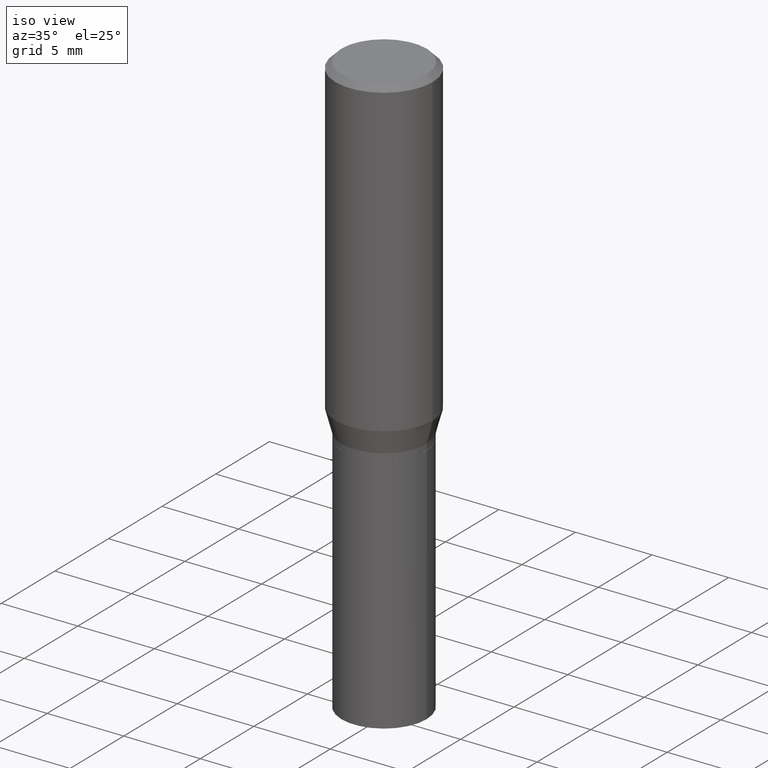
[diagram: clean part render]
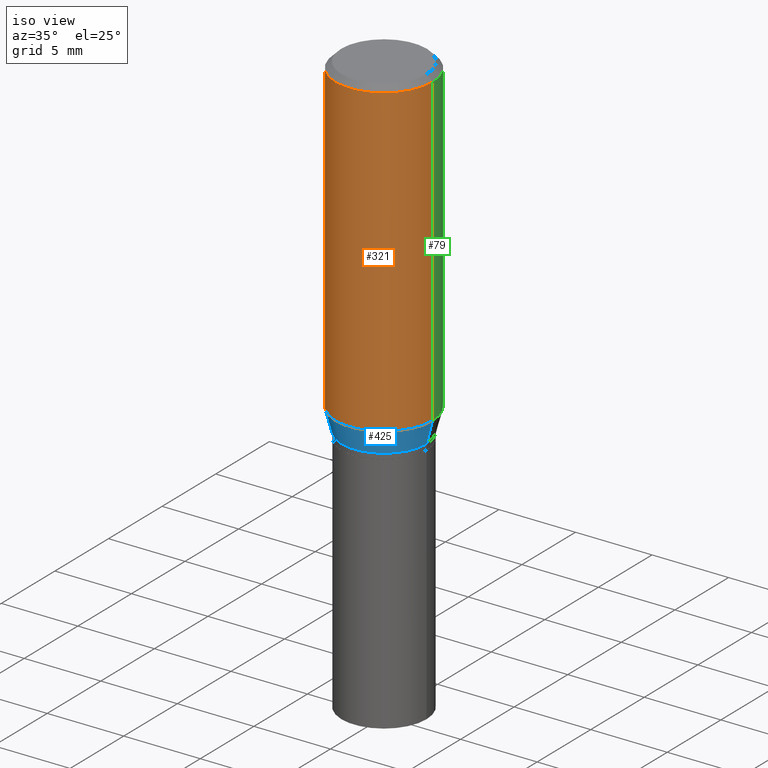
[diagram: same view with three faces highlighted in distinct colors, each labeled with its STEP entity id]
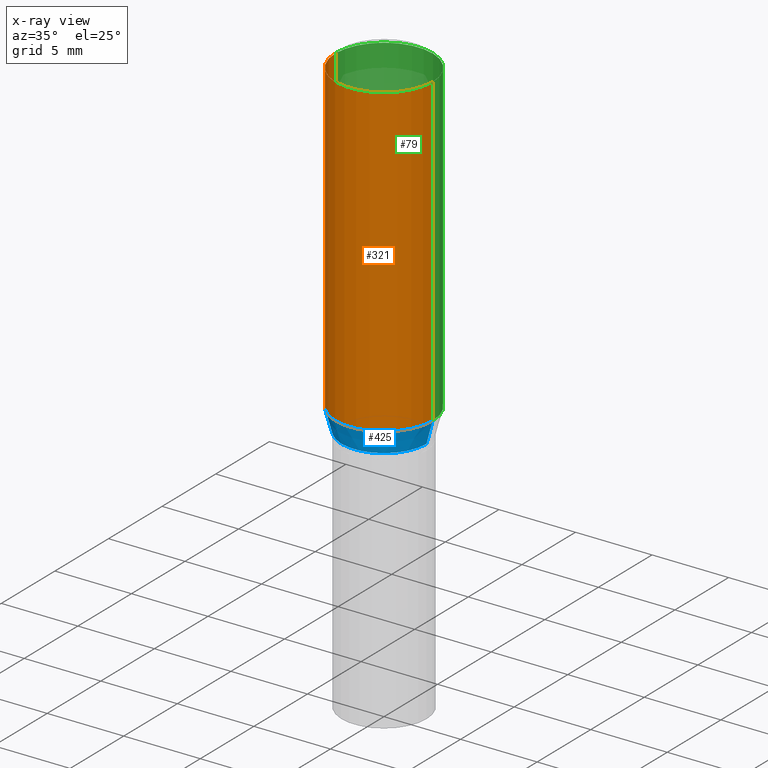
[diagram: x-ray of the same camera — body ghosted, the three highlighted faces saturated]
A machine part, iso view with three faces highlighted in distinct colors.
The next image is the same camera in x-ray (body ghosted, the three faces saturated) — at least one of them is partly hidden behind the body in this view.
Their STEP definitions:

[orange] entity #321 — the highlighted cylindrical surface (partial cylindrical patch) has radius 3.175 mm, axis along (-0, 0, 1).
#14 = DIRECTION ( 'NONE',  ( 1.000000000000000000, -6.982962677686266711E-15, 4.876176775795935793E-29 ) ) ;
#30 = EDGE_CURVE ( 'NONE', #151, #400, #253, .T. ) ;
#35 = EDGE_LOOP ( 'NONE', ( #453, #46, #416, #188 ) ) ;
#45 = CARTESIAN_POINT ( 'NONE',  ( 0.1250000000000000000, -9.252425547934304180E-16, -0.01499999999999999944 ) ) ;
#46 = ORIENTED_EDGE ( 'NONE', *, *, #30, .T. ) ;
#71 = VECTOR ( 'NONE', #360, 39.37007874015748143 ) ;
#78 = LINE ( 'NONE', #218, #71 ) ;
#80 = CARTESIAN_POINT ( 'NONE',  ( -0.1250000000000000000, -5.377076571918702821E-16, -0.01499999999999999944 ) ) ;
#100 = DIRECTION ( 'NONE',  ( -2.445468806185136597E-29, 3.491481338843145583E-15, 1.000000000000000000 ) ) ;
#137 = VECTOR ( 'NONE', #316, 39.37007874015748143 ) ;
#139 = LINE ( 'NONE', #167, #137 ) ;
#151 = VERTEX_POINT ( 'NONE', #398 ) ;
#167 = CARTESIAN_POINT ( 'NONE',  ( -0.1250000000000000000, 8.881784197001252323E-16, -6.148668862818632227E-30 ) ) ;
#188 = ORIENTED_EDGE ( 'NONE', *, *, #451, .F. ) ;
#203 = DIRECTION ( 'NONE',  ( 1.000000000000000000, -6.982962677686266711E-15, 0.000000000000000000 ) ) ;
#218 = CARTESIAN_POINT ( 'NONE',  ( 0.1250000000000000000, -8.728703347107833388E-16, 6.095220969744919741E-30 ) ) ;
#219 = CARTESIAN_POINT ( 'NONE',  ( 0.000000000000000000, 0.000000000000000000, 0.000000000000000000 ) ) ;
#222 = DIRECTION ( 'NONE',  ( -2.445468806185136597E-29, 3.491481338843145583E-15, 1.000000000000000000 ) ) ;
#253 = CIRCLE ( 'NONE', #284, 0.1250000000000000000 ) ;
#255 = AXIS2_PLACEMENT_3D ( 'NONE', #219, #332, #14 ) ;
#261 = CARTESIAN_POINT ( 'NONE',  ( 3.668203209277705088E-31, -5.237222008264718399E-17, -0.01499999999999999944 ) ) ;
#276 = EDGE_CURVE ( 'NONE', #151, #410, #139, .T. ) ;
#284 = AXIS2_PLACEMENT_3D ( 'NONE', #340, #100, #203 ) ;
#296 = FACE_OUTER_BOUND ( 'NONE', #35, .T. ) ;
#316 = DIRECTION ( 'NONE',  ( -2.445468806185136877E-29, 3.491481338843145188E-15, 1.000000000000000000 ) ) ;
#321 = ADVANCED_FACE ( 'NONE', ( #296 ), #443, .T. ) ;
#332 = DIRECTION ( 'NONE',  ( -2.445468806185136597E-29, 3.491481338843145583E-15, 1.000000000000000000 ) ) ;
#340 = CARTESIAN_POINT ( 'NONE',  ( 1.960727997524298183E-29, -2.799399933701343752E-15, -0.8017800074019261203 ) ) ;
#346 = AXIS2_PLACEMENT_3D ( 'NONE', #261, #222, #364 ) ;
#354 = VERTEX_POINT ( 'NONE', #45 ) ;
#360 = DIRECTION ( 'NONE',  ( -2.445468806185136877E-29, 3.491481338843145188E-15, 1.000000000000000000 ) ) ;
#364 = DIRECTION ( 'NONE',  ( 1.000000000000000000, -6.982962677686266711E-15, 0.000000000000000000 ) ) ;
#398 = CARTESIAN_POINT ( 'NONE',  ( -0.1250000000000000000, -1.911221514001218520E-15, -0.8017800074019261203 ) ) ;
#400 = VERTEX_POINT ( 'NONE', #445 ) ;
#407 = EDGE_CURVE ( 'NONE', #400, #354, #78, .T. ) ;
#410 = VERTEX_POINT ( 'NONE', #80 ) ;
#416 = ORIENTED_EDGE ( 'NONE', *, *, #407, .T. ) ;
#441 = CIRCLE ( 'NONE', #346, 0.1250000000000000000 ) ;
#443 = CYLINDRICAL_SURFACE ( 'NONE', #255, 0.1250000000000000000 ) ;
#445 = CARTESIAN_POINT ( 'NONE',  ( 0.1250000000000000000, -3.672270268412127091E-15, -0.8017800074019261203 ) ) ;
#451 = EDGE_CURVE ( 'NONE', #410, #354, #441, .T. ) ;
#453 = ORIENTED_EDGE ( 'NONE', *, *, #276, .F. ) ;

[blue] entity #425 — the highlighted conical surface has half-angle 15 deg.
#2 = CARTESIAN_POINT ( 'NONE',  ( -0.1094000000000000389, -2.225340198483555672E-15, -0.8600000000000000977 ) ) ;
#26 = EDGE_CURVE ( 'NONE', #320, #83, #365, .T. ) ;
#30 = EDGE_CURVE ( 'NONE', #151, #400, #253, .T. ) ;
#62 = CARTESIAN_POINT ( 'NONE',  ( 2.103103173319217765E-29, -3.002673951405105651E-15, -0.8600000000000000977 ) ) ;
#83 = VERTEX_POINT ( 'NONE', #379 ) ;
#100 = DIRECTION ( 'NONE',  ( -2.445468806185136597E-29, 3.491481338843145583E-15, 1.000000000000000000 ) ) ;
#116 = FACE_OUTER_BOUND ( 'NONE', #299, .T. ) ;
#117 = ORIENTED_EDGE ( 'NONE', *, *, #30, .F. ) ;
#118 = CARTESIAN_POINT ( 'NONE',  ( 2.103103173319217765E-29, -3.002673951405105651E-15, -0.8600000000000000977 ) ) ;
#120 = AXIS2_PLACEMENT_3D ( 'NONE', #62, #314, #424 ) ;
#129 = VECTOR ( 'NONE', #324, 39.37007874015748854 ) ;
#151 = VERTEX_POINT ( 'NONE', #398 ) ;
#170 = ORIENTED_EDGE ( 'NONE', *, *, #238, .F. ) ;
#179 = ORIENTED_EDGE ( 'NONE', *, *, #26, .T. ) ;
#184 = DIRECTION ( 'NONE',  ( 1.000000000000000000, -6.982962677686266711E-15, 0.000000000000000000 ) ) ;
#203 = DIRECTION ( 'NONE',  ( 1.000000000000000000, -6.982962677686266711E-15, 0.000000000000000000 ) ) ;
#204 = EDGE_CURVE ( 'NONE', #83, #400, #282, .T. ) ;
#209 = VECTOR ( 'NONE', #285, 39.37007874015748854 ) ;
#211 = AXIS2_PLACEMENT_3D ( 'NONE', #118, #442, #184 ) ;
#238 = EDGE_CURVE ( 'NONE', #320, #151, #323, .T. ) ;
#253 = CIRCLE ( 'NONE', #284, 0.1250000000000000000 ) ;
#256 = CARTESIAN_POINT ( 'NONE',  ( -0.1094000000000000389, -2.068280856242386899E-15, -0.8600000000000000977 ) ) ;
#260 = ORIENTED_EDGE ( 'NONE', *, *, #204, .T. ) ;
#280 = CONICAL_SURFACE ( 'NONE', #211, 0.1094000000000000389, 0.2617993877991507401 ) ;
#282 = LINE ( 'NONE', #389, #209 ) ;
#284 = AXIS2_PLACEMENT_3D ( 'NONE', #340, #100, #203 ) ;
#285 = DIRECTION ( 'NONE',  ( 0.2588190451025219607, 1.565188264969616840E-15, 0.9659258262890678681 ) ) ;
#299 = EDGE_LOOP ( 'NONE', ( #170, #179, #260, #117 ) ) ;
#314 = DIRECTION ( 'NONE',  ( -2.445468806185136597E-29, 3.491481338843145583E-15, 1.000000000000000000 ) ) ;
#320 = VERTEX_POINT ( 'NONE', #256 ) ;
#323 = LINE ( 'NONE', #2, #129 ) ;
#324 = DIRECTION ( 'NONE',  ( -0.2588190451025219607, 5.211531920934553408E-15, 0.9659258262890678681 ) ) ;
#340 = CARTESIAN_POINT ( 'NONE',  ( 1.960727997524298183E-29, -2.799399933701343752E-15, -0.8017800074019261203 ) ) ;
#365 = CIRCLE ( 'NONE', #120, 0.1094000000000000389 ) ;
#379 = CARTESIAN_POINT ( 'NONE',  ( 0.1094000000000000389, -3.766610068343983617E-15, -0.8600000000000000977 ) ) ;
#389 = CARTESIAN_POINT ( 'NONE',  ( 0.1094000000000000389, -3.766610068343983617E-15, -0.8600000000000000977 ) ) ;
#398 = CARTESIAN_POINT ( 'NONE',  ( -0.1250000000000000000, -1.911221514001218520E-15, -0.8017800074019261203 ) ) ;
#400 = VERTEX_POINT ( 'NONE', #445 ) ;
#424 = DIRECTION ( 'NONE',  ( 1.000000000000000000, -6.982962677686266711E-15, 0.000000000000000000 ) ) ;
#425 = ADVANCED_FACE ( 'NONE', ( #116 ), #280, .T. ) ;
#442 = DIRECTION ( 'NONE',  ( -2.445468806185136597E-29, 3.491481338843145583E-15, 1.000000000000000000 ) ) ;
#445 = CARTESIAN_POINT ( 'NONE',  ( 0.1250000000000000000, -3.672270268412127091E-15, -0.8017800074019261203 ) ) ;

[green] entity #79 — the highlighted cylindrical surface (partial cylindrical patch) has radius 3.175 mm, axis along (-0, 0, 1).
#37 = CARTESIAN_POINT ( 'NONE',  ( 1.960727997524298183E-29, -2.799399933701343752E-15, -0.8017800074019261203 ) ) ;
#39 = AXIS2_PLACEMENT_3D ( 'NONE', #382, #200, #198 ) ;
#45 = CARTESIAN_POINT ( 'NONE',  ( 0.1250000000000000000, -9.252425547934304180E-16, -0.01499999999999999944 ) ) ;
#50 = DIRECTION ( 'NONE',  ( -2.445468806185136597E-29, 3.491481338843145583E-15, 1.000000000000000000 ) ) ;
#70 = AXIS2_PLACEMENT_3D ( 'NONE', #37, #168, #283 ) ;
#71 = VECTOR ( 'NONE', #360, 39.37007874015748143 ) ;
#78 = LINE ( 'NONE', #218, #71 ) ;
#79 = ADVANCED_FACE ( 'NONE', ( #234 ), #279, .T. ) ;
#80 = CARTESIAN_POINT ( 'NONE',  ( -0.1250000000000000000, -5.377076571918702821E-16, -0.01499999999999999944 ) ) ;
#81 = ORIENTED_EDGE ( 'NONE', *, *, #229, .T. ) ;
#110 = ORIENTED_EDGE ( 'NONE', *, *, #276, .T. ) ;
#137 = VECTOR ( 'NONE', #316, 39.37007874015748143 ) ;
#139 = LINE ( 'NONE', #167, #137 ) ;
#151 = VERTEX_POINT ( 'NONE', #398 ) ;
#167 = CARTESIAN_POINT ( 'NONE',  ( -0.1250000000000000000, 8.881784197001252323E-16, -6.148668862818632227E-30 ) ) ;
#168 = DIRECTION ( 'NONE',  ( -2.445468806185136597E-29, 3.491481338843145583E-15, 1.000000000000000000 ) ) ;
#187 = DIRECTION ( 'NONE',  ( 1.000000000000000000, -6.982962677686266711E-15, 0.000000000000000000 ) ) ;
#198 = DIRECTION ( 'NONE',  ( 1.000000000000000000, -6.982962677686266711E-15, 4.876176775795935793E-29 ) ) ;
#200 = DIRECTION ( 'NONE',  ( -2.445468806185136597E-29, 3.491481338843145583E-15, 1.000000000000000000 ) ) ;
#218 = CARTESIAN_POINT ( 'NONE',  ( 0.1250000000000000000, -8.728703347107833388E-16, 6.095220969744919741E-30 ) ) ;
#228 = ORIENTED_EDGE ( 'NONE', *, *, #407, .F. ) ;
#229 = EDGE_CURVE ( 'NONE', #400, #151, #240, .T. ) ;
#234 = FACE_OUTER_BOUND ( 'NONE', #372, .T. ) ;
#240 = CIRCLE ( 'NONE', #70, 0.1250000000000000000 ) ;
#276 = EDGE_CURVE ( 'NONE', #151, #410, #139, .T. ) ;
#279 = CYLINDRICAL_SURFACE ( 'NONE', #39, 0.1250000000000000000 ) ;
#283 = DIRECTION ( 'NONE',  ( 1.000000000000000000, -6.982962677686266711E-15, 0.000000000000000000 ) ) ;
#316 = DIRECTION ( 'NONE',  ( -2.445468806185136877E-29, 3.491481338843145188E-15, 1.000000000000000000 ) ) ;
#328 = ORIENTED_EDGE ( 'NONE', *, *, #464, .F. ) ;
#354 = VERTEX_POINT ( 'NONE', #45 ) ;
#360 = DIRECTION ( 'NONE',  ( -2.445468806185136877E-29, 3.491481338843145188E-15, 1.000000000000000000 ) ) ;
#368 = CARTESIAN_POINT ( 'NONE',  ( 3.668203209277705088E-31, -5.237222008264718399E-17, -0.01499999999999999944 ) ) ;
#372 = EDGE_LOOP ( 'NONE', ( #81, #110, #328, #228 ) ) ;
#377 = AXIS2_PLACEMENT_3D ( 'NONE', #368, #50, #187 ) ;
#382 = CARTESIAN_POINT ( 'NONE',  ( 0.000000000000000000, 0.000000000000000000, 0.000000000000000000 ) ) ;
#394 = CIRCLE ( 'NONE', #377, 0.1250000000000000000 ) ;
#398 = CARTESIAN_POINT ( 'NONE',  ( -0.1250000000000000000, -1.911221514001218520E-15, -0.8017800074019261203 ) ) ;
#400 = VERTEX_POINT ( 'NONE', #445 ) ;
#407 = EDGE_CURVE ( 'NONE', #400, #354, #78, .T. ) ;
#410 = VERTEX_POINT ( 'NONE', #80 ) ;
#445 = CARTESIAN_POINT ( 'NONE',  ( 0.1250000000000000000, -3.672270268412127091E-15, -0.8017800074019261203 ) ) ;
#464 = EDGE_CURVE ( 'NONE', #354, #410, #394, .T. ) ;